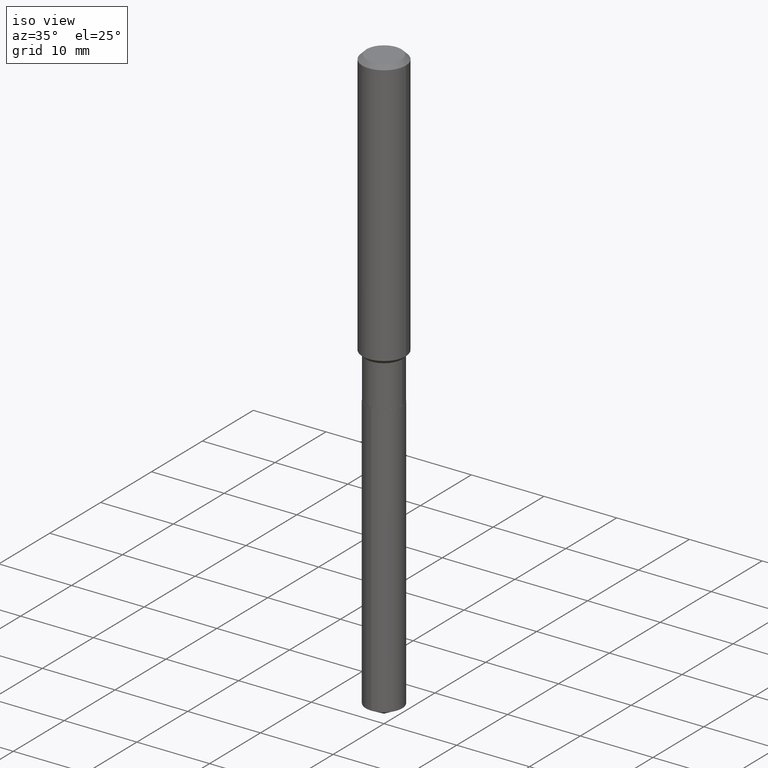
[diagram: clean part render]
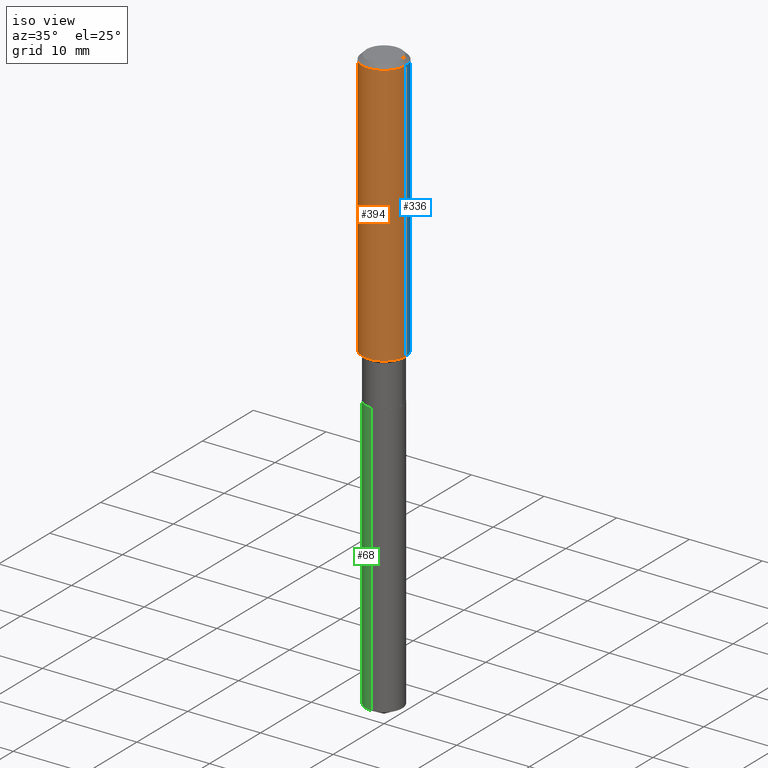
[diagram: same view with three faces highlighted in distinct colors, each labeled with its STEP entity id]
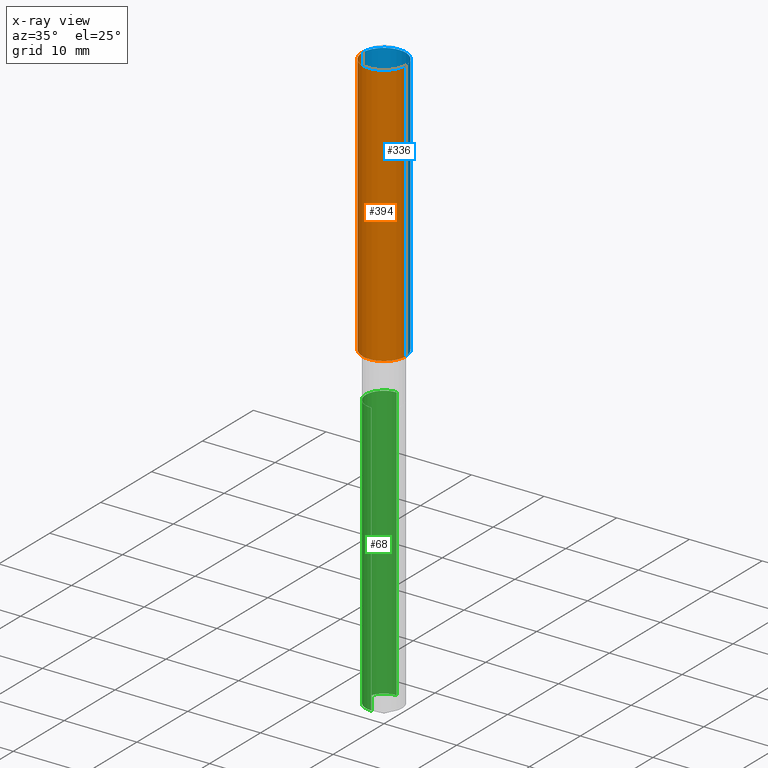
[diagram: x-ray of the same camera — body ghosted, the three highlighted faces saturated]
A machine part, iso view with three faces highlighted in distinct colors.
The next image is the same camera in x-ray (body ghosted, the three faces saturated) — at least one of them is partly hidden behind the body in this view.
Their STEP definitions:

[orange] entity #394 — the highlighted cylindrical surface (edge-blend (fillet) strip) has radius 2.9997 mm, axis along (-0, 0, 1).
#16 = FACE_OUTER_BOUND ( 'NONE', #312, .T. ) ;
#34 = EDGE_CURVE ( 'NONE', #192, #426, #285, .T. ) ;
#40 = EDGE_CURVE ( 'NONE', #192, #238, #176, .T. ) ;
#44 = DIRECTION ( 'NONE',  ( -2.445468806185136597E-29, 3.491481338843145583E-15, 1.000000000000000000 ) ) ;
#46 = DIRECTION ( 'NONE',  ( 1.000000000000000000, -6.982962677686266711E-15, 4.876176775795936353E-29 ) ) ;
#56 = CARTESIAN_POINT ( 'NONE',  ( 0.1181000000000000799, -8.246878922347486570E-16, 5.758764772215004644E-30 ) ) ;
#113 = DIRECTION ( 'NONE',  ( -2.445468806185136597E-29, 3.491481338843145583E-15, 1.000000000000000000 ) ) ;
#120 = EDGE_CURVE ( 'NONE', #238, #463, #466, .T. ) ;
#121 = DIRECTION ( 'NONE',  ( 1.000000000000000000, -6.982962677686266711E-15, 0.000000000000000000 ) ) ;
#125 = CARTESIAN_POINT ( 'NONE',  ( -0.1181000000000000799, 8.391509709326788873E-16, -5.809262341591047988E-30 ) ) ;
#127 = DIRECTION ( 'NONE',  ( -2.445468806185136877E-29, 3.491481338843145188E-15, 1.000000000000000000 ) ) ;
#152 = ORIENTED_EDGE ( 'NONE', *, *, #40, .F. ) ;
#154 = CYLINDRICAL_SURFACE ( 'NONE', #490, 0.1181000000000000799 ) ;
#176 = LINE ( 'NONE', #125, #430 ) ;
#192 = VERTEX_POINT ( 'NONE', #258 ) ;
#214 = EDGE_CURVE ( 'NONE', #426, #463, #396, .T. ) ;
#238 = VERTEX_POINT ( 'NONE', #376 ) ;
#241 = CARTESIAN_POINT ( 'NONE',  ( 0.000000000000000000, 0.000000000000000000, 0.000000000000000000 ) ) ;
#247 = CARTESIAN_POINT ( 'NONE',  ( 3.538226542228964985E-29, -5.051649775105204853E-15, -1.446849999999999969 ) ) ;
#255 = AXIS2_PLACEMENT_3D ( 'NONE', #247, #113, #387 ) ;
#258 = CARTESIAN_POINT ( 'NONE',  ( -0.1181000000000001632, -4.212498804172525078E-15, -1.446849999999999969 ) ) ;
#268 = VECTOR ( 'NONE', #127, 39.37007874015748143 ) ;
#285 = CIRCLE ( 'NONE', #255, 0.1181000000000001632 ) ;
#312 = EDGE_LOOP ( 'NONE', ( #152, #340, #378, #437 ) ) ;
#329 = DIRECTION ( 'NONE',  ( -2.445468806185136597E-29, 3.491481338843145583E-15, 1.000000000000000000 ) ) ;
#340 = ORIENTED_EDGE ( 'NONE', *, *, #34, .T. ) ;
#363 = CARTESIAN_POINT ( 'NONE',  ( 5.776197320209327532E-31, -8.246878922347559293E-17, -0.02362000000000014088 ) ) ;
#372 = AXIS2_PLACEMENT_3D ( 'NONE', #363, #329, #121 ) ;
#376 = CARTESIAN_POINT ( 'NONE',  ( -0.1180999999999999966, -1.727908311231660578E-15, -0.02362000000000014088 ) ) ;
#378 = ORIENTED_EDGE ( 'NONE', *, *, #214, .T. ) ;
#387 = DIRECTION ( 'NONE',  ( 1.000000000000000000, -6.982962677686270655E-15, 0.000000000000000000 ) ) ;
#394 = ADVANCED_FACE ( 'NONE', ( #16 ), #154, .T. ) ;
#396 = LINE ( 'NONE', #56, #268 ) ;
#400 = CARTESIAN_POINT ( 'NONE',  ( 0.1180999999999999966, -9.071566814582237199E-16, -0.02362000000000014088 ) ) ;
#407 = DIRECTION ( 'NONE',  ( -2.445468806185136877E-29, 3.491481338843145188E-15, 1.000000000000000000 ) ) ;
#426 = VERTEX_POINT ( 'NONE', #432 ) ;
#430 = VECTOR ( 'NONE', #407, 39.37007874015748143 ) ;
#432 = CARTESIAN_POINT ( 'NONE',  ( 0.1181000000000001632, -5.876337667339954694E-15, -1.446849999999999969 ) ) ;
#437 = ORIENTED_EDGE ( 'NONE', *, *, #120, .F. ) ;
#463 = VERTEX_POINT ( 'NONE', #400 ) ;
#466 = CIRCLE ( 'NONE', #372, 0.1180999999999999966 ) ;
#490 = AXIS2_PLACEMENT_3D ( 'NONE', #241, #44, #46 ) ;

[blue] entity #336 — the highlighted cylindrical surface (edge-blend (fillet) strip) has radius 2.9997 mm, axis along (-0, 0, 1).
#9 = EDGE_LOOP ( 'NONE', ( #109, #242, #54, #259 ) ) ;
#27 = DIRECTION ( 'NONE',  ( 1.000000000000000000, -6.982962677686266711E-15, 0.000000000000000000 ) ) ;
#36 = CARTESIAN_POINT ( 'NONE',  ( 0.000000000000000000, 0.000000000000000000, 0.000000000000000000 ) ) ;
#40 = EDGE_CURVE ( 'NONE', #192, #238, #176, .T. ) ;
#53 = AXIS2_PLACEMENT_3D ( 'NONE', #187, #102, #27 ) ;
#54 = ORIENTED_EDGE ( 'NONE', *, *, #266, .F. ) ;
#56 = CARTESIAN_POINT ( 'NONE',  ( 0.1181000000000000799, -8.246878922347486570E-16, 5.758764772215004644E-30 ) ) ;
#77 = CIRCLE ( 'NONE', #150, 0.1181000000000001632 ) ;
#102 = DIRECTION ( 'NONE',  ( -2.445468806185136597E-29, 3.491481338843145583E-15, 1.000000000000000000 ) ) ;
#105 = FACE_OUTER_BOUND ( 'NONE', #9, .T. ) ;
#109 = ORIENTED_EDGE ( 'NONE', *, *, #406, .T. ) ;
#125 = CARTESIAN_POINT ( 'NONE',  ( -0.1181000000000000799, 8.391509709326788873E-16, -5.809262341591047988E-30 ) ) ;
#127 = DIRECTION ( 'NONE',  ( -2.445468806185136877E-29, 3.491481338843145188E-15, 1.000000000000000000 ) ) ;
#150 = AXIS2_PLACEMENT_3D ( 'NONE', #157, #319, #162 ) ;
#157 = CARTESIAN_POINT ( 'NONE',  ( 3.538226542228964985E-29, -5.051649775105204853E-15, -1.446849999999999969 ) ) ;
#162 = DIRECTION ( 'NONE',  ( 1.000000000000000000, -6.982962677686270655E-15, 0.000000000000000000 ) ) ;
#176 = LINE ( 'NONE', #125, #430 ) ;
#187 = CARTESIAN_POINT ( 'NONE',  ( 5.776197320209327532E-31, -8.246878922347559293E-17, -0.02362000000000014088 ) ) ;
#191 = DIRECTION ( 'NONE',  ( -2.445468806185136597E-29, 3.491481338843145583E-15, 1.000000000000000000 ) ) ;
#192 = VERTEX_POINT ( 'NONE', #258 ) ;
#213 = AXIS2_PLACEMENT_3D ( 'NONE', #36, #191, #335 ) ;
#214 = EDGE_CURVE ( 'NONE', #426, #463, #396, .T. ) ;
#231 = CYLINDRICAL_SURFACE ( 'NONE', #213, 0.1181000000000000799 ) ;
#238 = VERTEX_POINT ( 'NONE', #376 ) ;
#242 = ORIENTED_EDGE ( 'NONE', *, *, #40, .T. ) ;
#258 = CARTESIAN_POINT ( 'NONE',  ( -0.1181000000000001632, -4.212498804172525078E-15, -1.446849999999999969 ) ) ;
#259 = ORIENTED_EDGE ( 'NONE', *, *, #214, .F. ) ;
#266 = EDGE_CURVE ( 'NONE', #463, #238, #440, .T. ) ;
#268 = VECTOR ( 'NONE', #127, 39.37007874015748143 ) ;
#319 = DIRECTION ( 'NONE',  ( -2.445468806185136597E-29, 3.491481338843145583E-15, 1.000000000000000000 ) ) ;
#335 = DIRECTION ( 'NONE',  ( 1.000000000000000000, -6.982962677686266711E-15, 4.876176775795936353E-29 ) ) ;
#336 = ADVANCED_FACE ( 'NONE', ( #105 ), #231, .T. ) ;
#376 = CARTESIAN_POINT ( 'NONE',  ( -0.1180999999999999966, -1.727908311231660578E-15, -0.02362000000000014088 ) ) ;
#396 = LINE ( 'NONE', #56, #268 ) ;
#400 = CARTESIAN_POINT ( 'NONE',  ( 0.1180999999999999966, -9.071566814582237199E-16, -0.02362000000000014088 ) ) ;
#406 = EDGE_CURVE ( 'NONE', #426, #192, #77, .T. ) ;
#407 = DIRECTION ( 'NONE',  ( -2.445468806185136877E-29, 3.491481338843145188E-15, 1.000000000000000000 ) ) ;
#426 = VERTEX_POINT ( 'NONE', #432 ) ;
#430 = VECTOR ( 'NONE', #407, 39.37007874015748143 ) ;
#432 = CARTESIAN_POINT ( 'NONE',  ( 0.1181000000000001632, -5.876337667339954694E-15, -1.446849999999999969 ) ) ;
#440 = CIRCLE ( 'NONE', #53, 0.1180999999999999966 ) ;
#463 = VERTEX_POINT ( 'NONE', #400 ) ;

[green] entity #68 — the highlighted cylindrical surface (edge-blend (fillet) strip) has radius 2.5006 mm, axis along (-0, 0, 1).
#2 = VERTEX_POINT ( 'NONE', #74 ) ;
#6 = ORIENTED_EDGE ( 'NONE', *, *, #237, .F. ) ;
#17 = VERTEX_POINT ( 'NONE', #84 ) ;
#22 = EDGE_CURVE ( 'NONE', #17, #413, #155, .T. ) ;
#31 = CARTESIAN_POINT ( 'NONE',  ( 4.139934141990818357E-29, -5.910728758527561864E-15, -1.692900000000000071 ) ) ;
#57 = CARTESIAN_POINT ( 'NONE',  ( 4.139934141990818357E-29, -5.910728758527561864E-15, -1.692900000000000071 ) ) ;
#58 = EDGE_CURVE ( 'NONE', #2, #98, #130, .T. ) ;
#62 = DIRECTION ( 'NONE',  ( -2.445509088617800403E-29, 3.491423652106837223E-15, 1.000000000000000000 ) ) ;
#68 = ADVANCED_FACE ( 'NONE', ( #399 ), #289, .T. ) ;
#74 = CARTESIAN_POINT ( 'NONE',  ( -6.874726756181350545E-16, -0.09845000000001107032, -3.175953206452927002 ) ) ;
#84 = CARTESIAN_POINT ( 'NONE',  ( 6.995293233558961091E-16, 0.09844999999998889362, -3.175953206452928335 ) ) ;
#88 = CARTESIAN_POINT ( 'NONE',  ( -6.874726756181714407E-16, -0.09845000000000590779, -1.692899999999999849 ) ) ;
#98 = VERTEX_POINT ( 'NONE', #88 ) ;
#130 = LINE ( 'NONE', #286, #401 ) ;
#139 = DIRECTION ( 'NONE',  ( -2.445509088617800403E-29, 3.491423652106837223E-15, 1.000000000000000000 ) ) ;
#155 = LINE ( 'NONE', #314, #473 ) ;
#188 = ORIENTED_EDGE ( 'NONE', *, *, #22, .F. ) ;
#195 = AXIS2_PLACEMENT_3D ( 'NONE', #31, #228, #307 ) ;
#200 = EDGE_LOOP ( 'NONE', ( #188, #436, #206, #6 ) ) ;
#206 = ORIENTED_EDGE ( 'NONE', *, *, #58, .T. ) ;
#228 = DIRECTION ( 'NONE',  ( -2.445509088617800403E-29, 3.491423652106837223E-15, 1.000000000000000000 ) ) ;
#237 = EDGE_CURVE ( 'NONE', #413, #98, #246, .T. ) ;
#246 = CIRCLE ( 'NONE', #195, 0.09844999999999999585 ) ;
#280 = DIRECTION ( 'NONE',  ( -2.445509088617800403E-29, 3.491423652106837223E-15, 1.000000000000000000 ) ) ;
#286 = CARTESIAN_POINT ( 'NONE',  ( -6.874726756181714407E-16, -0.09845000000000590779, -1.692899999999999849 ) ) ;
#289 = CYLINDRICAL_SURFACE ( 'NONE', #489, 0.09844999999999999585 ) ;
#291 = EDGE_CURVE ( 'NONE', #17, #2, #365, .T. ) ;
#307 = DIRECTION ( 'NONE',  ( -6.982962677686265922E-15, -1.000000000000000000, 2.774858297271979165E-15 ) ) ;
#314 = CARTESIAN_POINT ( 'NONE',  ( 6.995293233558598215E-16, 0.09844999999999408391, -1.692900000000000293 ) ) ;
#360 = DIRECTION ( 'NONE',  ( -6.982962677686265922E-15, -1.000000000000000000, 2.774858297271979165E-15 ) ) ;
#365 = CIRCLE ( 'NONE', #433, 0.09844999999999999585 ) ;
#399 = FACE_OUTER_BOUND ( 'NONE', #200, .T. ) ;
#401 = VECTOR ( 'NONE', #62, 39.37007874015748143 ) ;
#402 = DIRECTION ( 'NONE',  ( -2.445509088617800403E-29, 3.491423652106837223E-15, 1.000000000000000000 ) ) ;
#413 = VERTEX_POINT ( 'NONE', #425 ) ;
#425 = CARTESIAN_POINT ( 'NONE',  ( 6.995293233558962077E-16, 0.09844999999999408391, -1.692900000000000293 ) ) ;
#433 = AXIS2_PLACEMENT_3D ( 'NONE', #484, #139, #455 ) ;
#436 = ORIENTED_EDGE ( 'NONE', *, *, #291, .T. ) ;
#455 = DIRECTION ( 'NONE',  ( -6.982962677686265922E-15, -1.000000000000000000, 5.549716594543958330E-15 ) ) ;
#473 = VECTOR ( 'NONE', #280, 39.37007874015748143 ) ;
#484 = CARTESIAN_POINT ( 'NONE',  ( 7.766754237275222935E-29, -1.108869580087019846E-14, -3.175953206452927891 ) ) ;
#489 = AXIS2_PLACEMENT_3D ( 'NONE', #57, #402, #360 ) ;